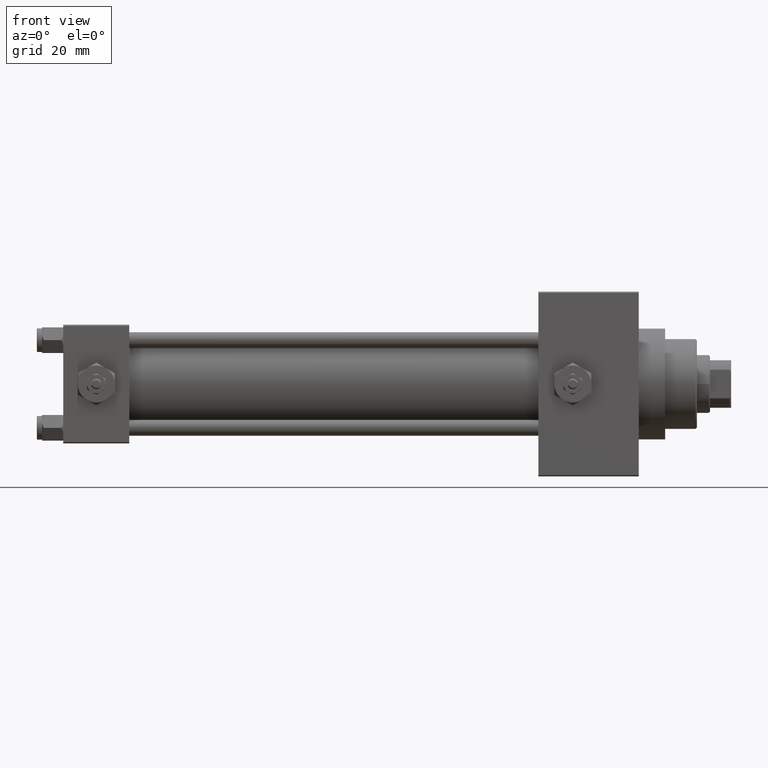
[diagram: clean part render]
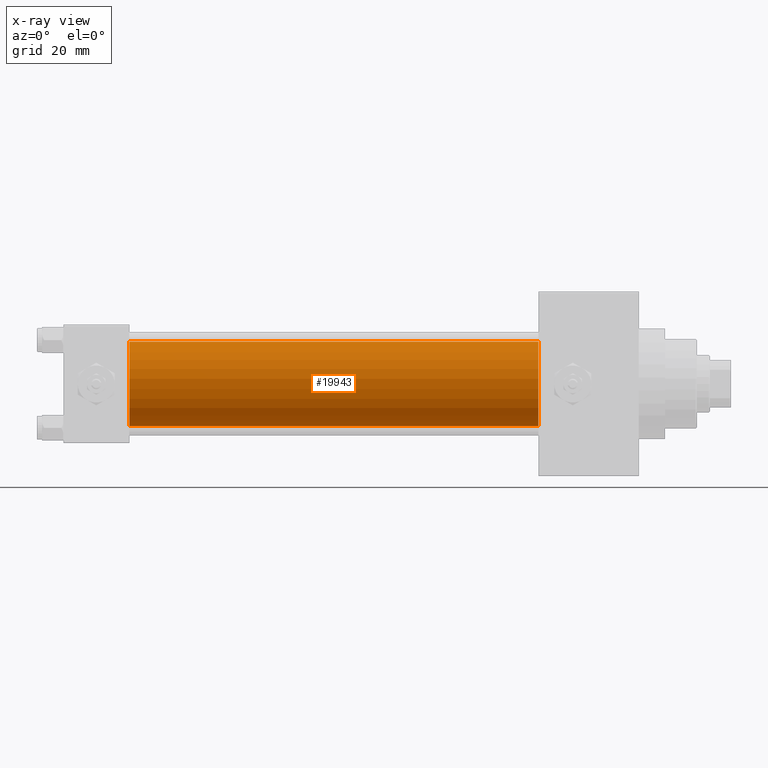
[diagram: x-ray — body ghosted, one internal face saturated and labeled with its STEP entity id]
A machine part, front view, then the same camera in x-ray: the body is ghosted and one INTERNAL B-rep face — a face not visible from any outside direction — is saturated and labeled: STEP entity #19943.
In plain terms, the highlighted cylindrical surface (partial cylindrical patch) has radius 16 mm, axis along (-1, -0, -0).
Its self-contained STEP definition (entity closure, byte-faithful):
#383 = DIRECTION ( 'NONE',  ( 0.000000000000000000, 0.000000000000000000, -1.000000000000000000 ) ) ;
#1911 = ORIENTED_EDGE ( 'NONE', *, *, #5710, .T. ) ;
#2948 = CARTESIAN_POINT ( 'NONE',  ( 180.0000000000000000, -2.602085213965210642E-15, 16.00000000000000000 ) ) ;
#4111 = DIRECTION ( 'NONE',  ( 1.000000000000000000, 0.000000000000000000, 0.000000000000000000 ) ) ;
#5280 = CARTESIAN_POINT ( 'NONE',  ( 180.0000000000000000, -2.602085213965210642E-15, 16.00000000000000000 ) ) ;
#5710 = EDGE_CURVE ( 'NONE', #19317, #47015, #28361, .T. ) ;
#6840 = CARTESIAN_POINT ( 'NONE',  ( 25.00000000000000000, -2.602085213965210642E-15, 0.000000000000000000 ) ) ;
#7821 = VERTEX_POINT ( 'NONE', #5280 ) ;
#8526 = FACE_OUTER_BOUND ( 'NONE', #26167, .T. ) ;
#10974 = EDGE_CURVE ( 'NONE', #7821, #46929, #26507, .T. ) ;
#12616 = CIRCLE ( 'NONE', #45909, 16.00000000000000000 ) ;
#15551 = ORIENTED_EDGE ( 'NONE', *, *, #10974, .F. ) ;
#16467 = CYLINDRICAL_SURFACE ( 'NONE', #20222, 16.00000000000000000 ) ;
#18866 = EDGE_CURVE ( 'NONE', #46929, #47015, #31251, .T. ) ;
#19088 = DIRECTION ( 'NONE',  ( -1.000000000000000000, -0.000000000000000000, -0.000000000000000000 ) ) ;
#19317 = VERTEX_POINT ( 'NONE', #33247 ) ;
#19943 = ADVANCED_FACE ( 'NONE', ( #8526 ), #16467, .F. ) ;
#20222 = AXIS2_PLACEMENT_3D ( 'NONE', #27602, #23154, #23649 ) ;
#20294 = CARTESIAN_POINT ( 'NONE',  ( 25.00000000000000000, -6.426503353294456087E-16, -16.00000000000000000 ) ) ;
#23154 = DIRECTION ( 'NONE',  ( -1.000000000000000000, -0.000000000000000000, -0.000000000000000000 ) ) ;
#23649 = DIRECTION ( 'NONE',  ( 0.000000000000000000, 0.000000000000000000, 1.000000000000000000 ) ) ;
#26167 = EDGE_LOOP ( 'NONE', ( #33098, #1911, #44359, #15551 ) ) ;
#26507 = LINE ( 'NONE', #2948, #39820 ) ;
#27602 = CARTESIAN_POINT ( 'NONE',  ( 180.0000000000000000, -2.602085213965210642E-15, 0.000000000000000000 ) ) ;
#28361 = LINE ( 'NONE', #39767, #38057 ) ;
#31251 = CIRCLE ( 'NONE', #35984, 16.00000000000000000 ) ;
#33098 = ORIENTED_EDGE ( 'NONE', *, *, #42150, .T. ) ;
#33247 = CARTESIAN_POINT ( 'NONE',  ( 180.0000000000000000, -6.426503353294456087E-16, -16.00000000000000000 ) ) ;
#34359 = CARTESIAN_POINT ( 'NONE',  ( 180.0000000000000000, -2.602085213965210642E-15, 0.000000000000000000 ) ) ;
#35984 = AXIS2_PLACEMENT_3D ( 'NONE', #6840, #4111, #45300 ) ;
#38057 = VECTOR ( 'NONE', #43509, 1000.000000000000000 ) ;
#39767 = CARTESIAN_POINT ( 'NONE',  ( 180.0000000000000000, -6.426503353294456087E-16, -16.00000000000000000 ) ) ;
#39820 = VECTOR ( 'NONE', #19088, 1000.000000000000000 ) ;
#42150 = EDGE_CURVE ( 'NONE', #7821, #19317, #12616, .T. ) ;
#43509 = DIRECTION ( 'NONE',  ( -1.000000000000000000, -0.000000000000000000, -0.000000000000000000 ) ) ;
#44359 = ORIENTED_EDGE ( 'NONE', *, *, #18866, .F. ) ;
#45300 = DIRECTION ( 'NONE',  ( 0.000000000000000000, 0.000000000000000000, -1.000000000000000000 ) ) ;
#45909 = AXIS2_PLACEMENT_3D ( 'NONE', #34359, #46041, #383 ) ;
#46041 = DIRECTION ( 'NONE',  ( 1.000000000000000000, 0.000000000000000000, 0.000000000000000000 ) ) ;
#46929 = VERTEX_POINT ( 'NONE', #48853 ) ;
#47015 = VERTEX_POINT ( 'NONE', #20294 ) ;
#48853 = CARTESIAN_POINT ( 'NONE',  ( 25.00000000000000000, -2.602085213965210642E-15, 16.00000000000000000 ) ) ;